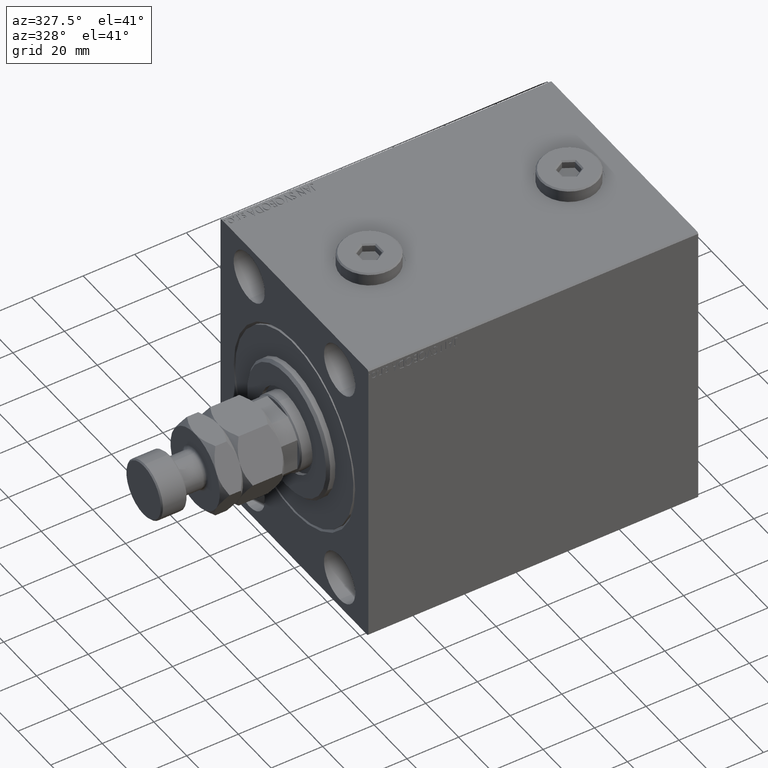
[diagram: clean part render]
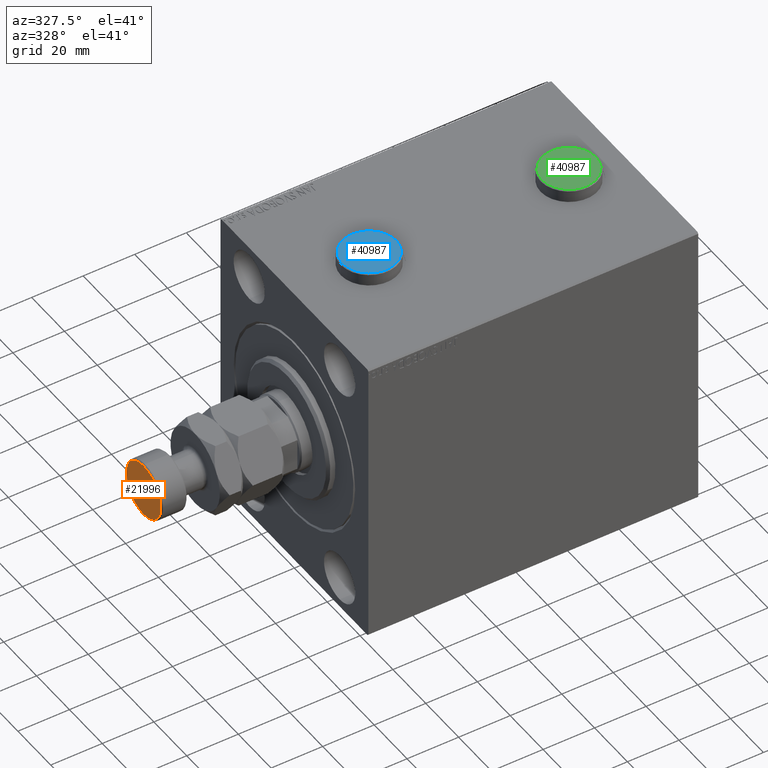
[diagram: same view with three faces highlighted in distinct colors, each labeled with its STEP entity id]
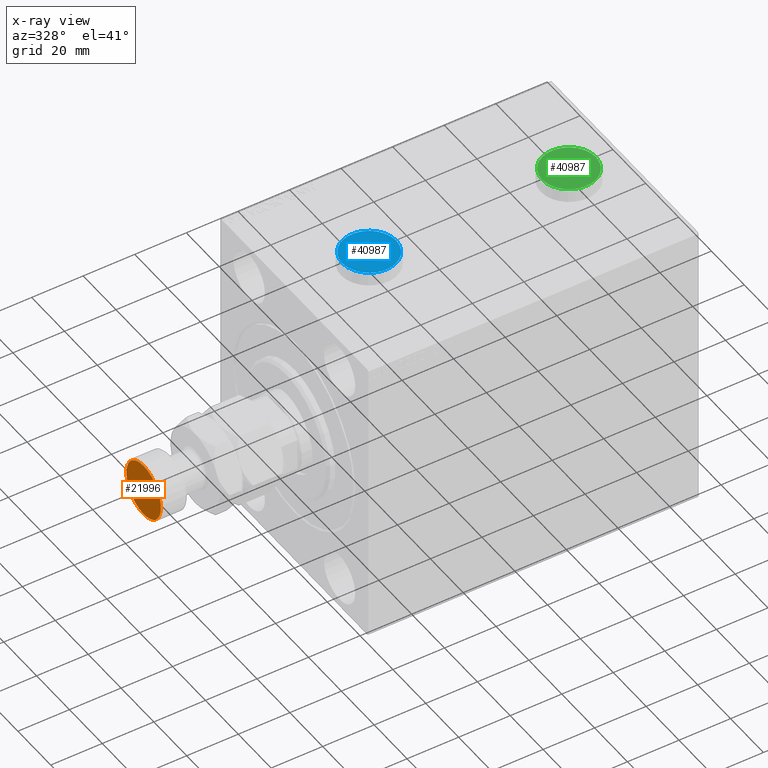
[diagram: x-ray of the same camera — body ghosted, the three highlighted faces saturated]
A machine part, auxiliary view with three faces highlighted in distinct colors.
The next image is the same camera in x-ray (body ghosted, the three faces saturated) — at least one of them is partly hidden behind the body in this view.
Their STEP definitions:

[orange] entity #21996 — the highlighted planar face has unit normal (-1, 0, 0).
#4921 = VERTEX_POINT ( 'NONE', #13866 ) ;
#5056 = DIRECTION ( 'NONE',  ( 0.000000000000000000, 0.000000000000000000, 1.000000000000000000 ) ) ;
#6149 = ORIENTED_EDGE ( 'NONE', *, *, #37693, .T. ) ;
#7013 = AXIS2_PLACEMENT_3D ( 'NONE', #45633, #35636, #31346 ) ;
#10811 = CARTESIAN_POINT ( 'NONE',  ( 10.50000000000000178, 1.316495309083404815E-15, 45.00000000000000711 ) ) ;
#12921 = VERTEX_POINT ( 'NONE', #10811 ) ;
#13866 = CARTESIAN_POINT ( 'NONE',  ( -10.50000000000000178, 0.000000000000000000, 45.00000000000000711 ) ) ;
#14732 = DIRECTION ( 'NONE',  ( 1.000000000000000000, 0.000000000000000000, -0.000000000000000000 ) ) ;
#15436 = FACE_OUTER_BOUND ( 'NONE', #36615, .T. ) ;
#16457 = DIRECTION ( 'NONE',  ( 1.000000000000000000, 0.000000000000000000, 0.000000000000000000 ) ) ;
#18238 = CIRCLE ( 'NONE', #31855, 10.50000000000000178 ) ;
#21996 = ADVANCED_FACE ( 'NONE', ( #15436 ), #36368, .T. ) ;
#22819 = CARTESIAN_POINT ( 'NONE',  ( 0.000000000000000000, 0.000000000000000000, 45.00000000000000711 ) ) ;
#25687 = AXIS2_PLACEMENT_3D ( 'NONE', #22819, #32557, #14732 ) ;
#28898 = ORIENTED_EDGE ( 'NONE', *, *, #31616, .T. ) ;
#30938 = CARTESIAN_POINT ( 'NONE',  ( 0.000000000000000000, 0.000000000000000000, 45.00000000000000711 ) ) ;
#31346 = DIRECTION ( 'NONE',  ( 1.000000000000000000, 0.000000000000000000, 0.000000000000000000 ) ) ;
#31616 = EDGE_CURVE ( 'NONE', #12921, #4921, #18238, .T. ) ;
#31855 = AXIS2_PLACEMENT_3D ( 'NONE', #30938, #5056, #16457 ) ;
#32557 = DIRECTION ( 'NONE',  ( 0.000000000000000000, 0.000000000000000000, 1.000000000000000000 ) ) ;
#35636 = DIRECTION ( 'NONE',  ( 0.000000000000000000, 0.000000000000000000, 1.000000000000000000 ) ) ;
#36368 = PLANE ( 'NONE',  #25687 ) ;
#36615 = EDGE_LOOP ( 'NONE', ( #6149, #28898 ) ) ;
#37693 = EDGE_CURVE ( 'NONE', #4921, #12921, #42710, .T. ) ;
#42710 = CIRCLE ( 'NONE', #7013, 10.50000000000000178 ) ;
#45633 = CARTESIAN_POINT ( 'NONE',  ( 0.000000000000000000, 0.000000000000000000, 45.00000000000000711 ) ) ;

[blue] entity #40987 — the highlighted planar face has unit normal (0, 0, 1).
#565 = LINE ( 'NONE', #4135, #43576 ) ;
#673 = EDGE_CURVE ( 'NONE', #32212, #33100, #565, .T. ) ;
#702 = ORIENTED_EDGE ( 'NONE', *, *, #15151, .T. ) ;
#1161 = DIRECTION ( 'NONE',  ( 1.024305408229881337E-16, -1.000000000000000000, 0.000000000000000000 ) ) ;
#1428 = CARTESIAN_POINT ( 'NONE',  ( 3.916666666666664742, 2.549963688920845239, 5.000000000000000000 ) ) ;
#1487 = DIRECTION ( 'NONE',  ( 0.000000000000000000, 0.000000000000000000, 1.000000000000000000 ) ) ;
#2747 = VECTOR ( 'NONE', #1161, 1000.000000000000000 ) ;
#4135 = CARTESIAN_POINT ( 'NONE',  ( -0.2499999999999992506, 4.666914675949470848, 5.000000000000000000 ) ) ;
#4827 = CARTESIAN_POINT ( 'NONE',  ( 0.2499999999999981681, -4.666914675949471736, 5.000000000000000000 ) ) ;
#5230 = LINE ( 'NONE', #1428, #40665 ) ;
#5509 = ORIENTED_EDGE ( 'NONE', *, *, #38336, .T. ) ;
#5522 = VECTOR ( 'NONE', #40792, 1000.000000000000000 ) ;
#6369 = AXIS2_PLACEMENT_3D ( 'NONE', #15343, #44346, #7737 ) ;
#6607 = EDGE_LOOP ( 'NONE', ( #16076, #43325 ) ) ;
#6720 = CARTESIAN_POINT ( 'NONE',  ( 4.166666666666663410, 2.405626121623439584, 5.000000000000000000 ) ) ;
#7737 = DIRECTION ( 'NONE',  ( 1.000000000000000000, 0.000000000000000000, -0.000000000000000000 ) ) ;
#12015 = PLANE ( 'NONE',  #6369 ) ;
#12028 = CARTESIAN_POINT ( 'NONE',  ( -4.166666666666664298, 2.116950987028627829, 5.000000000000000000 ) ) ;
#14039 = VERTEX_POINT ( 'NONE', #30235 ) ;
#14391 = CIRCLE ( 'NONE', #28057, 10.50000000000000178 ) ;
#15151 = EDGE_CURVE ( 'NONE', #33100, #22468, #5230, .T. ) ;
#15343 = CARTESIAN_POINT ( 'NONE',  ( 0.000000000000000000, 0.000000000000000000, 5.000000000000000000 ) ) ;
#15356 = LINE ( 'NONE', #12028, #5522 ) ;
#15578 = FACE_OUTER_BOUND ( 'NONE', #6607, .T. ) ;
#15994 = DIRECTION ( 'NONE',  ( 1.000000000000000000, 0.000000000000000000, 0.000000000000000000 ) ) ;
#16076 = ORIENTED_EDGE ( 'NONE', *, *, #41522, .T. ) ;
#17303 = EDGE_CURVE ( 'NONE', #22468, #46640, #32789, .T. ) ;
#17541 = CARTESIAN_POINT ( 'NONE',  ( 4.166666666666664298, -2.405626121623439584, 5.000000000000000000 ) ) ;
#18864 = LINE ( 'NONE', #4827, #42674 ) ;
#18884 = CARTESIAN_POINT ( 'NONE',  ( -8.363929151985410416E-16, -4.811252243246877391, 5.000000000000000000 ) ) ;
#19338 = DIRECTION ( 'NONE',  ( -0.8660254037844387076, -0.4999999999999998335, 0.000000000000000000 ) ) ;
#19748 = DIRECTION ( 'NONE',  ( 0.8660254037844387076, -0.4999999999999998335, 0.000000000000000000 ) ) ;
#22094 = CARTESIAN_POINT ( 'NONE',  ( -6.281144585932674641E-17, 4.811252243246876503, 5.000000000000000000 ) ) ;
#22468 = VERTEX_POINT ( 'NONE', #6720 ) ;
#22576 = CARTESIAN_POINT ( 'NONE',  ( 4.166666666666664298, -2.116950987028627384, 5.000000000000000000 ) ) ;
#22724 = FACE_BOUND ( 'NONE', #45338, .T. ) ;
#22979 = ORIENTED_EDGE ( 'NONE', *, *, #673, .T. ) ;
#23117 = ORIENTED_EDGE ( 'NONE', *, *, #36965, .T. ) ;
#26252 = EDGE_CURVE ( 'NONE', #36614, #14039, #14391, .T. ) ;
#26680 = CARTESIAN_POINT ( 'NONE',  ( 0.000000000000000000, 0.000000000000000000, 5.000000000000000000 ) ) ;
#28057 = AXIS2_PLACEMENT_3D ( 'NONE', #42511, #35382, #31570 ) ;
#28290 = VERTEX_POINT ( 'NONE', #18884 ) ;
#29794 = LINE ( 'NONE', #36701, #37527 ) ;
#30235 = CARTESIAN_POINT ( 'NONE',  ( -10.50000000000000178, 0.000000000000000000, 5.000000000000000000 ) ) ;
#30297 = CARTESIAN_POINT ( 'NONE',  ( 10.50000000000000178, 1.316495309083404815E-15, 5.000000000000000000 ) ) ;
#30538 = CARTESIAN_POINT ( 'NONE',  ( -4.166666666666664298, 2.405626121623439584, 5.000000000000000000 ) ) ;
#31570 = DIRECTION ( 'NONE',  ( 1.000000000000000000, 0.000000000000000000, 0.000000000000000000 ) ) ;
#32212 = VERTEX_POINT ( 'NONE', #30538 ) ;
#32653 = CARTESIAN_POINT ( 'NONE',  ( -4.166666666666665186, -2.405626121623437363, 5.000000000000000000 ) ) ;
#32789 = LINE ( 'NONE', #22576, #2747 ) ;
#33100 = VERTEX_POINT ( 'NONE', #22094 ) ;
#34483 = CIRCLE ( 'NONE', #35996, 10.50000000000000178 ) ;
#35382 = DIRECTION ( 'NONE',  ( 0.000000000000000000, 0.000000000000000000, 1.000000000000000000 ) ) ;
#35996 = AXIS2_PLACEMENT_3D ( 'NONE', #26680, #1487, #15994 ) ;
#36614 = VERTEX_POINT ( 'NONE', #30297 ) ;
#36701 = CARTESIAN_POINT ( 'NONE',  ( -3.916666666666664742, -2.549963688920843907, 5.000000000000000000 ) ) ;
#36909 = ORIENTED_EDGE ( 'NONE', *, *, #17303, .T. ) ;
#36965 = EDGE_CURVE ( 'NONE', #46640, #28290, #18864, .T. ) ;
#37527 = VECTOR ( 'NONE', #44787, 1000.000000000000000 ) ;
#38336 = EDGE_CURVE ( 'NONE', #42047, #32212, #15356, .T. ) ;
#38408 = ORIENTED_EDGE ( 'NONE', *, *, #43024, .T. ) ;
#40262 = DIRECTION ( 'NONE',  ( 0.8660254037844388186, 0.4999999999999997780, 0.000000000000000000 ) ) ;
#40665 = VECTOR ( 'NONE', #19748, 1000.000000000000000 ) ;
#40792 = DIRECTION ( 'NONE',  ( 1.024305408229881337E-16, 1.000000000000000000, 0.000000000000000000 ) ) ;
#40987 = ADVANCED_FACE ( 'NONE', ( #22724, #15578 ), #12015, .T. ) ;
#41522 = EDGE_CURVE ( 'NONE', #14039, #36614, #34483, .T. ) ;
#42047 = VERTEX_POINT ( 'NONE', #32653 ) ;
#42511 = CARTESIAN_POINT ( 'NONE',  ( 0.000000000000000000, 0.000000000000000000, 5.000000000000000000 ) ) ;
#42674 = VECTOR ( 'NONE', #19338, 1000.000000000000000 ) ;
#43024 = EDGE_CURVE ( 'NONE', #28290, #42047, #29794, .T. ) ;
#43325 = ORIENTED_EDGE ( 'NONE', *, *, #26252, .T. ) ;
#43576 = VECTOR ( 'NONE', #40262, 1000.000000000000114 ) ;
#44346 = DIRECTION ( 'NONE',  ( 0.000000000000000000, 0.000000000000000000, 1.000000000000000000 ) ) ;
#44787 = DIRECTION ( 'NONE',  ( -0.8660254037844384856, 0.5000000000000002220, 0.000000000000000000 ) ) ;
#45338 = EDGE_LOOP ( 'NONE', ( #5509, #22979, #702, #36909, #23117, #38408 ) ) ;
#46640 = VERTEX_POINT ( 'NONE', #17541 ) ;

[green] entity #40987 — the highlighted planar face has unit normal (0, 0, 1).
#565 = LINE ( 'NONE', #4135, #43576 ) ;
#673 = EDGE_CURVE ( 'NONE', #32212, #33100, #565, .T. ) ;
#702 = ORIENTED_EDGE ( 'NONE', *, *, #15151, .T. ) ;
#1161 = DIRECTION ( 'NONE',  ( 1.024305408229881337E-16, -1.000000000000000000, 0.000000000000000000 ) ) ;
#1428 = CARTESIAN_POINT ( 'NONE',  ( 3.916666666666664742, 2.549963688920845239, 5.000000000000000000 ) ) ;
#1487 = DIRECTION ( 'NONE',  ( 0.000000000000000000, 0.000000000000000000, 1.000000000000000000 ) ) ;
#2747 = VECTOR ( 'NONE', #1161, 1000.000000000000000 ) ;
#4135 = CARTESIAN_POINT ( 'NONE',  ( -0.2499999999999992506, 4.666914675949470848, 5.000000000000000000 ) ) ;
#4827 = CARTESIAN_POINT ( 'NONE',  ( 0.2499999999999981681, -4.666914675949471736, 5.000000000000000000 ) ) ;
#5230 = LINE ( 'NONE', #1428, #40665 ) ;
#5509 = ORIENTED_EDGE ( 'NONE', *, *, #38336, .T. ) ;
#5522 = VECTOR ( 'NONE', #40792, 1000.000000000000000 ) ;
#6369 = AXIS2_PLACEMENT_3D ( 'NONE', #15343, #44346, #7737 ) ;
#6607 = EDGE_LOOP ( 'NONE', ( #16076, #43325 ) ) ;
#6720 = CARTESIAN_POINT ( 'NONE',  ( 4.166666666666663410, 2.405626121623439584, 5.000000000000000000 ) ) ;
#7737 = DIRECTION ( 'NONE',  ( 1.000000000000000000, 0.000000000000000000, -0.000000000000000000 ) ) ;
#12015 = PLANE ( 'NONE',  #6369 ) ;
#12028 = CARTESIAN_POINT ( 'NONE',  ( -4.166666666666664298, 2.116950987028627829, 5.000000000000000000 ) ) ;
#14039 = VERTEX_POINT ( 'NONE', #30235 ) ;
#14391 = CIRCLE ( 'NONE', #28057, 10.50000000000000178 ) ;
#15151 = EDGE_CURVE ( 'NONE', #33100, #22468, #5230, .T. ) ;
#15343 = CARTESIAN_POINT ( 'NONE',  ( 0.000000000000000000, 0.000000000000000000, 5.000000000000000000 ) ) ;
#15356 = LINE ( 'NONE', #12028, #5522 ) ;
#15578 = FACE_OUTER_BOUND ( 'NONE', #6607, .T. ) ;
#15994 = DIRECTION ( 'NONE',  ( 1.000000000000000000, 0.000000000000000000, 0.000000000000000000 ) ) ;
#16076 = ORIENTED_EDGE ( 'NONE', *, *, #41522, .T. ) ;
#17303 = EDGE_CURVE ( 'NONE', #22468, #46640, #32789, .T. ) ;
#17541 = CARTESIAN_POINT ( 'NONE',  ( 4.166666666666664298, -2.405626121623439584, 5.000000000000000000 ) ) ;
#18864 = LINE ( 'NONE', #4827, #42674 ) ;
#18884 = CARTESIAN_POINT ( 'NONE',  ( -8.363929151985410416E-16, -4.811252243246877391, 5.000000000000000000 ) ) ;
#19338 = DIRECTION ( 'NONE',  ( -0.8660254037844387076, -0.4999999999999998335, 0.000000000000000000 ) ) ;
#19748 = DIRECTION ( 'NONE',  ( 0.8660254037844387076, -0.4999999999999998335, 0.000000000000000000 ) ) ;
#22094 = CARTESIAN_POINT ( 'NONE',  ( -6.281144585932674641E-17, 4.811252243246876503, 5.000000000000000000 ) ) ;
#22468 = VERTEX_POINT ( 'NONE', #6720 ) ;
#22576 = CARTESIAN_POINT ( 'NONE',  ( 4.166666666666664298, -2.116950987028627384, 5.000000000000000000 ) ) ;
#22724 = FACE_BOUND ( 'NONE', #45338, .T. ) ;
#22979 = ORIENTED_EDGE ( 'NONE', *, *, #673, .T. ) ;
#23117 = ORIENTED_EDGE ( 'NONE', *, *, #36965, .T. ) ;
#26252 = EDGE_CURVE ( 'NONE', #36614, #14039, #14391, .T. ) ;
#26680 = CARTESIAN_POINT ( 'NONE',  ( 0.000000000000000000, 0.000000000000000000, 5.000000000000000000 ) ) ;
#28057 = AXIS2_PLACEMENT_3D ( 'NONE', #42511, #35382, #31570 ) ;
#28290 = VERTEX_POINT ( 'NONE', #18884 ) ;
#29794 = LINE ( 'NONE', #36701, #37527 ) ;
#30235 = CARTESIAN_POINT ( 'NONE',  ( -10.50000000000000178, 0.000000000000000000, 5.000000000000000000 ) ) ;
#30297 = CARTESIAN_POINT ( 'NONE',  ( 10.50000000000000178, 1.316495309083404815E-15, 5.000000000000000000 ) ) ;
#30538 = CARTESIAN_POINT ( 'NONE',  ( -4.166666666666664298, 2.405626121623439584, 5.000000000000000000 ) ) ;
#31570 = DIRECTION ( 'NONE',  ( 1.000000000000000000, 0.000000000000000000, 0.000000000000000000 ) ) ;
#32212 = VERTEX_POINT ( 'NONE', #30538 ) ;
#32653 = CARTESIAN_POINT ( 'NONE',  ( -4.166666666666665186, -2.405626121623437363, 5.000000000000000000 ) ) ;
#32789 = LINE ( 'NONE', #22576, #2747 ) ;
#33100 = VERTEX_POINT ( 'NONE', #22094 ) ;
#34483 = CIRCLE ( 'NONE', #35996, 10.50000000000000178 ) ;
#35382 = DIRECTION ( 'NONE',  ( 0.000000000000000000, 0.000000000000000000, 1.000000000000000000 ) ) ;
#35996 = AXIS2_PLACEMENT_3D ( 'NONE', #26680, #1487, #15994 ) ;
#36614 = VERTEX_POINT ( 'NONE', #30297 ) ;
#36701 = CARTESIAN_POINT ( 'NONE',  ( -3.916666666666664742, -2.549963688920843907, 5.000000000000000000 ) ) ;
#36909 = ORIENTED_EDGE ( 'NONE', *, *, #17303, .T. ) ;
#36965 = EDGE_CURVE ( 'NONE', #46640, #28290, #18864, .T. ) ;
#37527 = VECTOR ( 'NONE', #44787, 1000.000000000000000 ) ;
#38336 = EDGE_CURVE ( 'NONE', #42047, #32212, #15356, .T. ) ;
#38408 = ORIENTED_EDGE ( 'NONE', *, *, #43024, .T. ) ;
#40262 = DIRECTION ( 'NONE',  ( 0.8660254037844388186, 0.4999999999999997780, 0.000000000000000000 ) ) ;
#40665 = VECTOR ( 'NONE', #19748, 1000.000000000000000 ) ;
#40792 = DIRECTION ( 'NONE',  ( 1.024305408229881337E-16, 1.000000000000000000, 0.000000000000000000 ) ) ;
#40987 = ADVANCED_FACE ( 'NONE', ( #22724, #15578 ), #12015, .T. ) ;
#41522 = EDGE_CURVE ( 'NONE', #14039, #36614, #34483, .T. ) ;
#42047 = VERTEX_POINT ( 'NONE', #32653 ) ;
#42511 = CARTESIAN_POINT ( 'NONE',  ( 0.000000000000000000, 0.000000000000000000, 5.000000000000000000 ) ) ;
#42674 = VECTOR ( 'NONE', #19338, 1000.000000000000000 ) ;
#43024 = EDGE_CURVE ( 'NONE', #28290, #42047, #29794, .T. ) ;
#43325 = ORIENTED_EDGE ( 'NONE', *, *, #26252, .T. ) ;
#43576 = VECTOR ( 'NONE', #40262, 1000.000000000000114 ) ;
#44346 = DIRECTION ( 'NONE',  ( 0.000000000000000000, 0.000000000000000000, 1.000000000000000000 ) ) ;
#44787 = DIRECTION ( 'NONE',  ( -0.8660254037844384856, 0.5000000000000002220, 0.000000000000000000 ) ) ;
#45338 = EDGE_LOOP ( 'NONE', ( #5509, #22979, #702, #36909, #23117, #38408 ) ) ;
#46640 = VERTEX_POINT ( 'NONE', #17541 ) ;